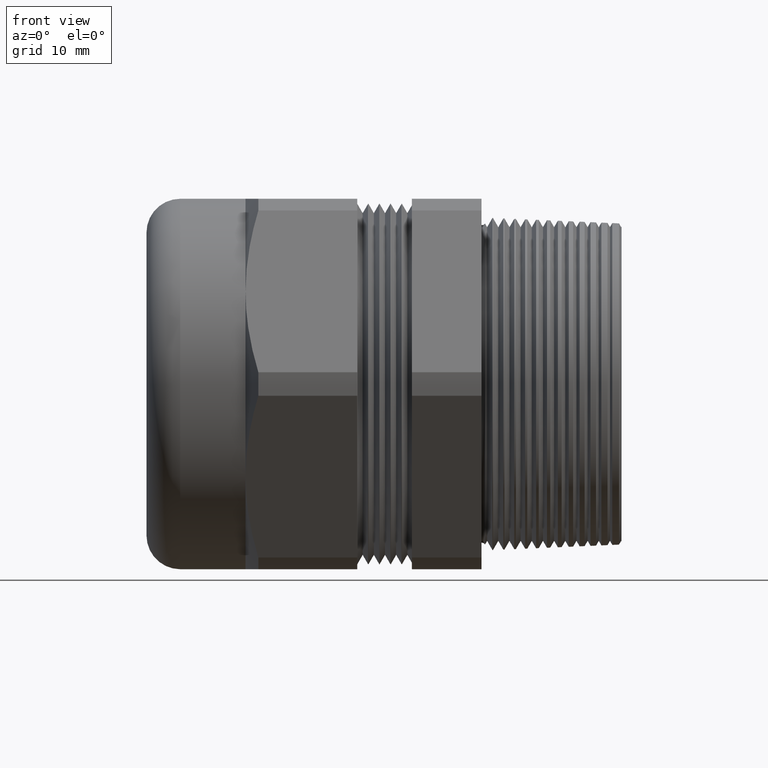
[diagram: clean part render]
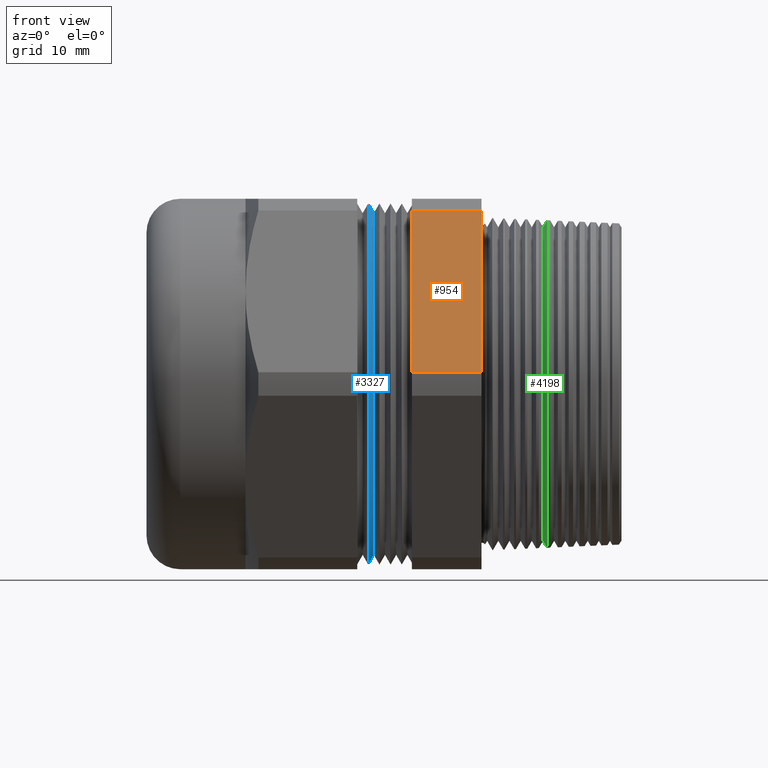
[diagram: same view with three faces highlighted in distinct colors, each labeled with its STEP entity id]
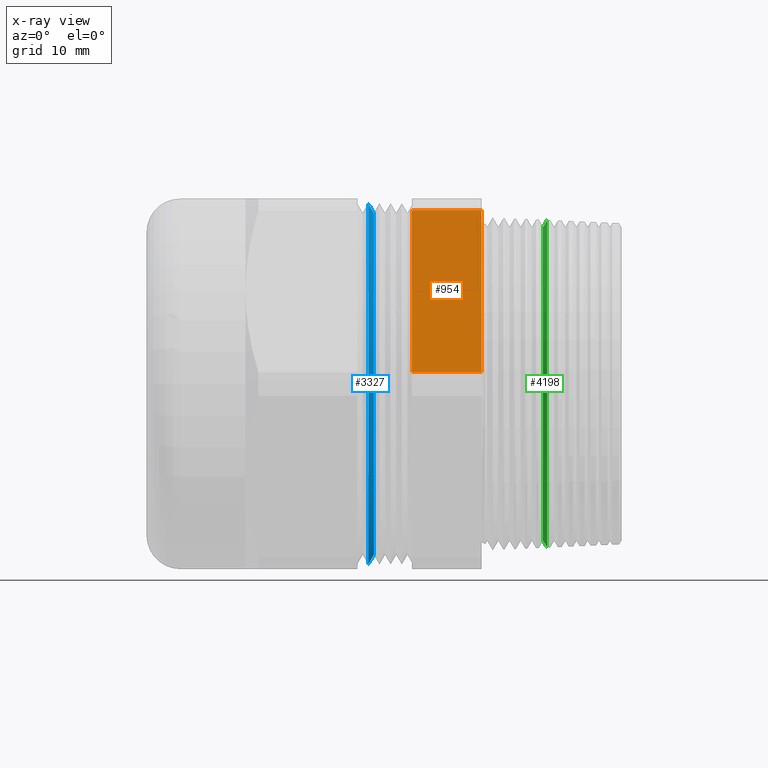
[diagram: x-ray of the same camera — body ghosted, the three highlighted faces saturated]
A machine part, front view with three faces highlighted in distinct colors.
The next image is the same camera in x-ray (body ghosted, the three faces saturated) — at least one of them is partly hidden behind the body in this view.
Their STEP definitions:

[orange] entity #954 — the highlighted planar face has unit normal (0, -0.866, 0.5).
#166 = VERTEX_POINT ( 'NONE', #600 ) ;
#169 = EDGE_CURVE ( 'NONE', #166, #4140, #659, .T. ) ;
#600 = CARTESIAN_POINT ( 'NONE',  ( -0.3930348258706468100, -1.168535519404734900, 0.06603710994211099700 ) ) ;
#637 = EDGE_CURVE ( 'NONE', #708, #4141, #1700, .T. ) ;
#656 = DIRECTION ( 'NONE',  ( 1.000000000000000000, 0.0000000000000000000, 0.0000000000000000000 ) ) ;
#657 = VECTOR ( 'NONE', #656, 39.37007874015748100 ) ;
#658 = CARTESIAN_POINT ( 'NONE',  ( -4.674745017870971100, -1.168535519404734900, 0.06603710994211099700 ) ) ;
#659 = LINE ( 'NONE', #658, #657 ) ;
#708 = VERTEX_POINT ( 'NONE', #1691 ) ;
#869 = EDGE_CURVE ( 'NONE', #708, #166, #1735, .T. ) ;
#949 = ORIENTED_EDGE ( 'NONE', *, *, #869, .T. ) ;
#950 = ORIENTED_EDGE ( 'NONE', *, *, #169, .T. ) ;
#952 = EDGE_LOOP ( 'NONE', ( #949, #950, #975, #976 ) ) ;
#954 = ADVANCED_FACE ( 'NONE', ( #1866 ), #1865, .T. ) ;
#975 = ORIENTED_EDGE ( 'NONE', *, *, #4206, .F. ) ;
#976 = ORIENTED_EDGE ( 'NONE', *, *, #637, .F. ) ;
#1691 = CARTESIAN_POINT ( 'NONE',  ( -0.3930348258706468100, -0.6414575745047419500, 0.9789628900578889500 ) ) ;
#1692 = DIRECTION ( 'NONE',  ( 1.000000000000000000, 0.0000000000000000000, 0.0000000000000000000 ) ) ;
#1693 = VECTOR ( 'NONE', #1692, 39.37007874015748100 ) ;
#1694 = CARTESIAN_POINT ( 'NONE',  ( -4.674745017870971100, -0.6414575745047412800, 0.9789628900578891700 ) ) ;
#1700 = LINE ( 'NONE', #1694, #1693 ) ;
#1732 = DIRECTION ( 'NONE',  ( 0.0000000000000000000, -0.5000000000000000000, -0.8660254037844386000 ) ) ;
#1733 = VECTOR ( 'NONE', #1732, 39.37007874015748100 ) ;
#1734 = CARTESIAN_POINT ( 'NONE',  ( -0.3930348258706468100, -0.6505965469547382300, 0.9631337254455223400 ) ) ;
#1735 = LINE ( 'NONE', #1734, #1733 ) ;
#1861 = DIRECTION ( 'NONE',  ( 0.0000000000000000000, -0.5000000000000000000, -0.8660254037844386000 ) ) ;
#1862 = DIRECTION ( 'NONE',  ( 0.0000000000000000000, -0.8660254037844387100, 0.5000000000000001100 ) ) ;
#1863 = CARTESIAN_POINT ( 'NONE',  ( -4.674745017870971100, -0.6414575745047415000, 0.9789628900578888300 ) ) ;
#1864 = AXIS2_PLACEMENT_3D ( 'NONE', #1863, #1862, #1861 ) ;
#1865 = PLANE ( 'NONE',  #1864 ) ;
#1866 = FACE_OUTER_BOUND ( 'NONE', #952, .T. ) ;
#3344 = CARTESIAN_POINT ( 'NONE',  ( 0.0000000000000000000, -0.6414575745047412800, 0.9789628900578891700 ) ) ;
#3349 = CARTESIAN_POINT ( 'NONE',  ( 0.0000000000000000000, -1.168535519404734900, 0.06603710994211099700 ) ) ;
#3437 = DIRECTION ( 'NONE',  ( 0.0000000000000000000, -0.5000000000000000000, -0.8660254037844386000 ) ) ;
#3438 = VECTOR ( 'NONE', #3437, 39.37007874015748900 ) ;
#3439 = CARTESIAN_POINT ( 'NONE',  ( 0.0000000000000000000, -0.6414575745047415000, 0.9789628900578888300 ) ) ;
#3440 = LINE ( 'NONE', #3439, #3438 ) ;
#4140 = VERTEX_POINT ( 'NONE', #3349 ) ;
#4141 = VERTEX_POINT ( 'NONE', #3344 ) ;
#4206 = EDGE_CURVE ( 'NONE', #4141, #4140, #3440, .T. ) ;

[blue] entity #3327 — the highlighted conical surface has half-angle 60 deg.
#958 = EDGE_CURVE ( 'NONE', #4059, #4073, #1860, .T. ) ;
#1547 = ORIENTED_EDGE ( 'NONE', *, *, #3181, .F. ) ;
#1551 = ORIENTED_EDGE ( 'NONE', *, *, #4068, .T. ) ;
#1554 = ORIENTED_EDGE ( 'NONE', *, *, #4074, .F. ) ;
#1555 = ORIENTED_EDGE ( 'NONE', *, *, #958, .T. ) ;
#1856 = DIRECTION ( 'NONE',  ( 0.0000000000000000000, 0.0000000000000000000, -1.000000000000000000 ) ) ;
#1857 = DIRECTION ( 'NONE',  ( 1.000000000000000000, 0.0000000000000000000, 0.0000000000000000000 ) ) ;
#1858 = CARTESIAN_POINT ( 'NONE',  ( -0.6382500000000001000, 0.0000000000000000000, 0.0000000000000000000 ) ) ;
#1859 = AXIS2_PLACEMENT_3D ( 'NONE', #1858, #1857, #1856 ) ;
#1860 = CIRCLE ( 'NONE', #1859, 1.017600000000000100 ) ;
#2587 = DIRECTION ( 'NONE',  ( 0.0000000000000000000, 0.0000000000000000000, -1.000000000000000000 ) ) ;
#2588 = DIRECTION ( 'NONE',  ( 1.000000000000000000, 0.0000000000000000000, 0.0000000000000000000 ) ) ;
#3088 = CARTESIAN_POINT ( 'NONE',  ( -0.6072500144537540400, 0.0000000000000000000, 0.0000000000000000000 ) ) ;
#3089 = AXIS2_PLACEMENT_3D ( 'NONE', #3088, #2588, #2587 ) ;
#3090 = CIRCLE ( 'NONE', #3089, 0.9639064500000000800 ) ;
#3147 = DIRECTION ( 'NONE',  ( 0.0000000000000000000, 0.0000000000000000000, 1.000000000000000000 ) ) ;
#3148 = DIRECTION ( 'NONE',  ( -1.000000000000000000, 0.0000000000000000000, 0.0000000000000000000 ) ) ;
#3149 = AXIS2_PLACEMENT_3D ( 'NONE', #3151, #3148, #3147 ) ;
#3151 = CARTESIAN_POINT ( 'NONE',  ( -0.6382500000000001000, 0.0000000000000000000, 0.0000000000000000000 ) ) ;
#3152 = CONICAL_SURFACE ( 'NONE', #3149, 1.017600000000000100, 1.047197551196606100 ) ;
#3153 = FACE_OUTER_BOUND ( 'NONE', #3262, .T. ) ;
#3168 = CARTESIAN_POINT ( 'NONE',  ( -0.6382500000000001000, 0.0000000000000000000, 1.017600000000000100 ) ) ;
#3181 = EDGE_CURVE ( 'NONE', #4080, #4076, #3090, .T. ) ;
#3190 = CARTESIAN_POINT ( 'NONE',  ( -0.6072500144537540400, 1.213322765741167400E-016, 0.9639064500000000800 ) ) ;
#3197 = CARTESIAN_POINT ( 'NONE',  ( -0.6072500144537540400, 0.0000000000000000000, -0.9639064500000000800 ) ) ;
#3198 = DIRECTION ( 'NONE',  ( -0.4999999999999927800, 1.060575238724911800E-016, -0.8660254037844427000 ) ) ;
#3199 = VECTOR ( 'NONE', #3198, 39.37007874015748100 ) ;
#3200 = CARTESIAN_POINT ( 'NONE',  ( -0.6382500000000001000, 1.246200582812346700E-016, -1.017600000000000100 ) ) ;
#3201 = LINE ( 'NONE', #3200, #3199 ) ;
#3202 = CARTESIAN_POINT ( 'NONE',  ( -0.6382500000000001000, 1.246200582812346700E-016, -1.017600000000000100 ) ) ;
#3212 = DIRECTION ( 'NONE',  ( -0.4999999999999927800, 0.0000000000000000000, 0.8660254037844427000 ) ) ;
#3213 = VECTOR ( 'NONE', #3212, 39.37007874015748100 ) ;
#3214 = CARTESIAN_POINT ( 'NONE',  ( -0.6382500000000001000, 0.0000000000000000000, 1.017600000000000100 ) ) ;
#3215 = LINE ( 'NONE', #3214, #3213 ) ;
#3262 = EDGE_LOOP ( 'NONE', ( #1554, #1547, #1551, #1555 ) ) ;
#3327 = ADVANCED_FACE ( 'NONE', ( #3153 ), #3152, .T. ) ;
#4059 = VERTEX_POINT ( 'NONE', #3168 ) ;
#4068 = EDGE_CURVE ( 'NONE', #4080, #4059, #3215, .T. ) ;
#4073 = VERTEX_POINT ( 'NONE', #3202 ) ;
#4074 = EDGE_CURVE ( 'NONE', #4076, #4073, #3201, .T. ) ;
#4076 = VERTEX_POINT ( 'NONE', #3197 ) ;
#4080 = VERTEX_POINT ( 'NONE', #3190 ) ;

[green] entity #4198 — the highlighted conical surface has half-angle 60 deg.
#1449 = EDGE_CURVE ( 'NONE', #4213, #4215, #2811, .T. ) ;
#2807 = DIRECTION ( 'NONE',  ( 0.0000000000000000000, 0.0000000000000000000, -1.000000000000000000 ) ) ;
#2808 = DIRECTION ( 'NONE',  ( -1.000000000000000000, 0.0000000000000000000, 0.0000000000000000000 ) ) ;
#2809 = CARTESIAN_POINT ( 'NONE',  ( 0.3693533222417858500, 0.0000000000000000000, 0.0000000000000000000 ) ) ;
#2810 = AXIS2_PLACEMENT_3D ( 'NONE', #2809, #2808, #2807 ) ;
#2811 = CIRCLE ( 'NONE', #2810, 0.9238736856845321000 ) ;
#3386 = DIRECTION ( 'NONE',  ( 0.0000000000000000000, 0.0000000000000000000, -1.000000000000000000 ) ) ;
#3387 = DIRECTION ( 'NONE',  ( 1.000000000000000000, 0.0000000000000000000, 0.0000000000000000000 ) ) ;
#3388 = AXIS2_PLACEMENT_3D ( 'NONE', #3391, #3387, #3386 ) ;
#3389 = CONICAL_SURFACE ( 'NONE', #3388, 0.8848654850007970900, 1.047197551196597200 ) ;
#3391 = CARTESIAN_POINT ( 'NONE',  ( 0.3468319270764285700, 0.0000000000000000000, 0.0000000000000000000 ) ) ;
#3397 = FACE_OUTER_BOUND ( 'NONE', #4180, .T. ) ;
#3404 = DIRECTION ( 'NONE',  ( 0.0000000000000000000, 0.0000000000000000000, 1.000000000000000000 ) ) ;
#3405 = DIRECTION ( 'NONE',  ( -1.000000000000000000, 0.0000000000000000000, 0.0000000000000000000 ) ) ;
#3406 = CARTESIAN_POINT ( 'NONE',  ( 0.3468319270764285700, 0.0000000000000000000, 0.0000000000000000000 ) ) ;
#3407 = AXIS2_PLACEMENT_3D ( 'NONE', #3406, #3405, #3404 ) ;
#3408 = CIRCLE ( 'NONE', #3407, 0.8848654850007970900 ) ;
#3420 = CARTESIAN_POINT ( 'NONE',  ( 0.3693533222417858500, 0.0000000000000000000, 0.9238736856845321000 ) ) ;
#3421 = CARTESIAN_POINT ( 'NONE',  ( 0.3693533222417858500, 1.131418951990030100E-016, -0.9238736856845321000 ) ) ;
#3535 = DIRECTION ( 'NONE',  ( 0.5000000000000004400, 0.0000000000000000000, -0.8660254037844383700 ) ) ;
#3536 = VECTOR ( 'NONE', #3535, 39.37007874015748100 ) ;
#3537 = CARTESIAN_POINT ( 'NONE',  ( 0.3468319270764285700, 0.0000000000000000000, -0.8848654850007970900 ) ) ;
#3538 = LINE ( 'NONE', #3537, #3536 ) ;
#3764 = CARTESIAN_POINT ( 'NONE',  ( 0.3468319270764285700, 0.0000000000000000000, 0.8848654850007970900 ) ) ;
#3799 = CARTESIAN_POINT ( 'NONE',  ( 0.3468319270764285700, 1.108768659756850100E-016, -0.8848654850007970900 ) ) ;
#3877 = DIRECTION ( 'NONE',  ( 0.5000000000000004400, 1.060575238724906400E-016, 0.8660254037844383700 ) ) ;
#3878 = VECTOR ( 'NONE', #3877, 39.37007874015748100 ) ;
#3879 = CARTESIAN_POINT ( 'NONE',  ( 0.3468319270764285700, 1.083647683882196400E-016, 0.8848654850007970900 ) ) ;
#3880 = LINE ( 'NONE', #3879, #3878 ) ;
#4179 = ORIENTED_EDGE ( 'NONE', *, *, #4445, .F. ) ;
#4180 = EDGE_LOOP ( 'NONE', ( #4179, #4182, #4183, #4253 ) ) ;
#4182 = ORIENTED_EDGE ( 'NONE', *, *, #4192, .F. ) ;
#4183 = ORIENTED_EDGE ( 'NONE', *, *, #4255, .T. ) ;
#4192 = EDGE_CURVE ( 'NONE', #4419, #4402, #3408, .T. ) ;
#4198 = ADVANCED_FACE ( 'NONE', ( #3397 ), #3389, .T. ) ;
#4213 = VERTEX_POINT ( 'NONE', #3421 ) ;
#4215 = VERTEX_POINT ( 'NONE', #3420 ) ;
#4253 = ORIENTED_EDGE ( 'NONE', *, *, #1449, .T. ) ;
#4255 = EDGE_CURVE ( 'NONE', #4419, #4213, #3538, .T. ) ;
#4402 = VERTEX_POINT ( 'NONE', #3764 ) ;
#4419 = VERTEX_POINT ( 'NONE', #3799 ) ;
#4445 = EDGE_CURVE ( 'NONE', #4402, #4215, #3880, .T. ) ;